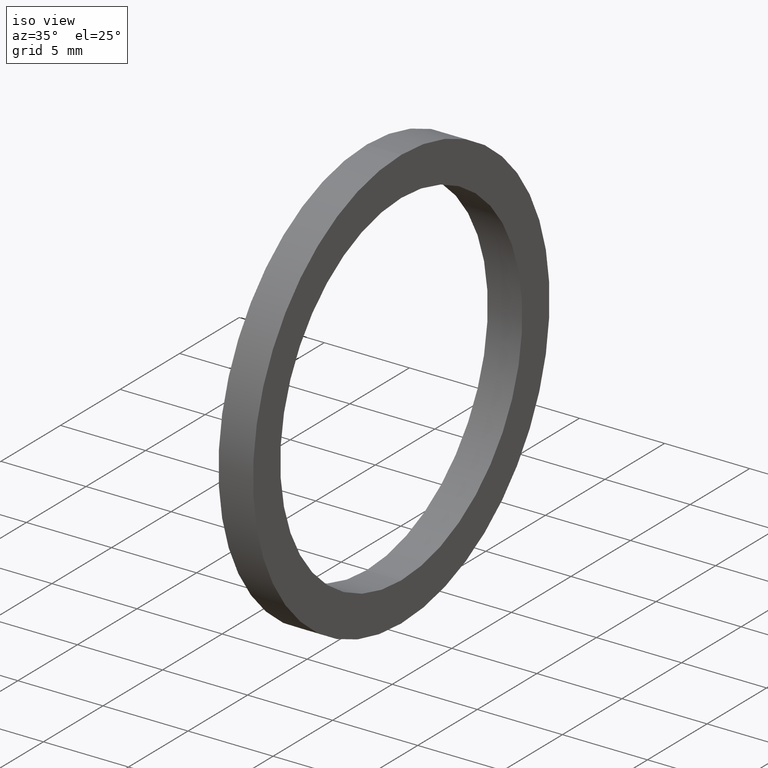
[diagram: clean part render]
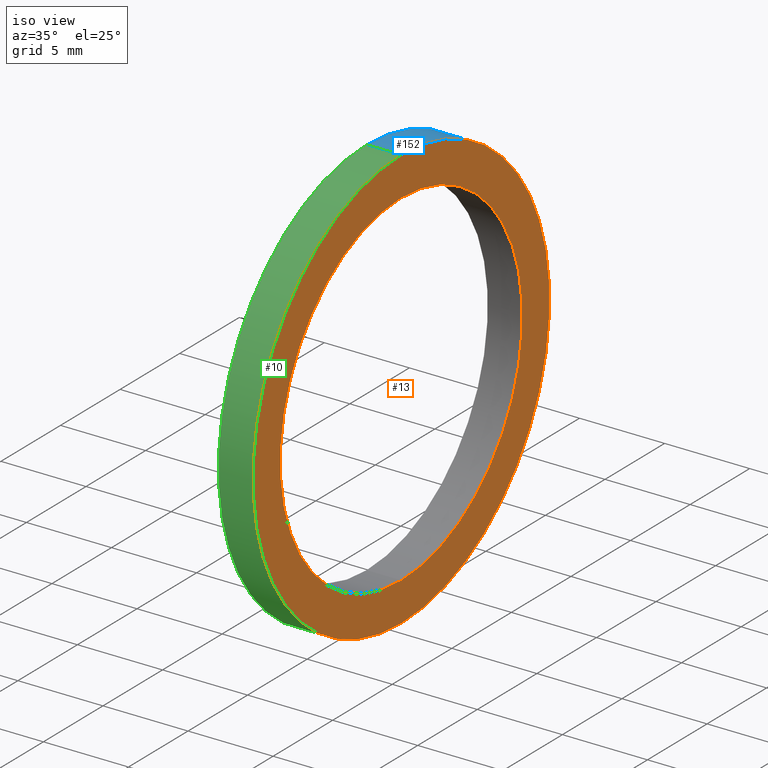
[diagram: same view with three faces highlighted in distinct colors, each labeled with its STEP entity id]
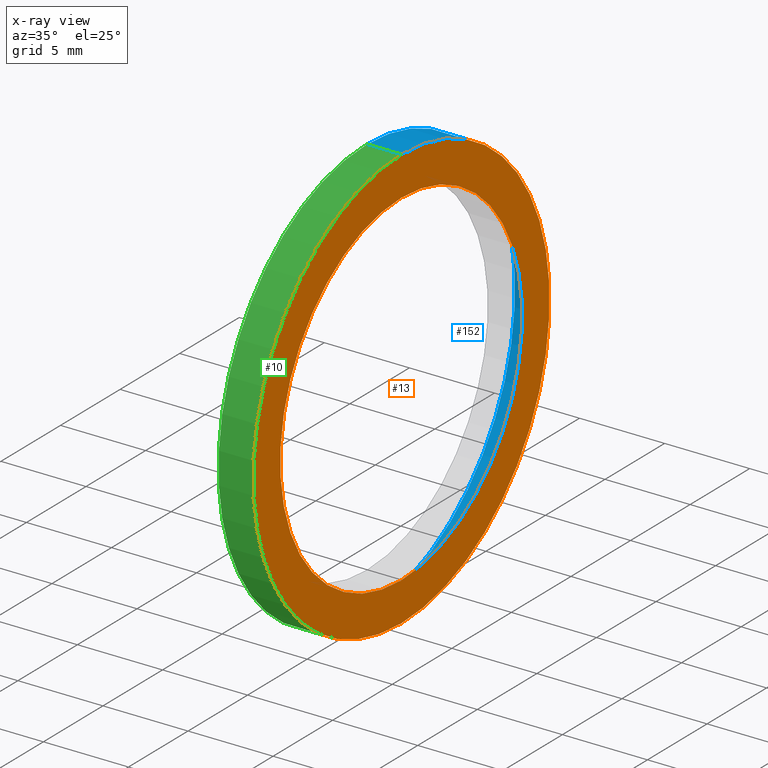
[diagram: x-ray of the same camera — body ghosted, the three highlighted faces saturated]
A machine part, iso view with three faces highlighted in distinct colors.
The next image is the same camera in x-ray (body ghosted, the three faces saturated) — at least one of them is partly hidden behind the body in this view.
Their STEP definitions:

[orange] entity #13 — the highlighted planar face has unit normal (1, 0, 0).
#8 = ORIENTED_EDGE ( 'NONE', *, *, #12, .F. ) ;
#12 = EDGE_CURVE ( 'NONE', #32, #22, #130, .T. ) ;
#13 = ADVANCED_FACE ( 'NONE', ( #131, #126 ), #125, .T. ) ;
#14 = EDGE_LOOP ( 'NONE', ( #30, #45 ) ) ;
#21 = EDGE_CURVE ( 'NONE', #22, #32, #150, .T. ) ;
#22 = VERTEX_POINT ( 'NONE', #146 ) ;
#30 = ORIENTED_EDGE ( 'NONE', *, *, #31, .T. ) ;
#31 = EDGE_CURVE ( 'NONE', #110, #111, #141, .T. ) ;
#32 = VERTEX_POINT ( 'NONE', #95 ) ;
#40 = ORIENTED_EDGE ( 'NONE', *, *, #21, .F. ) ;
#45 = ORIENTED_EDGE ( 'NONE', *, *, #109, .T. ) ;
#46 = EDGE_LOOP ( 'NONE', ( #40, #8 ) ) ;
#76 = CARTESIAN_POINT ( 'NONE',  ( 0.07999999999999996000, 4.898587196589413100E-017, -0.4000000000000000200 ) ) ;
#77 = CARTESIAN_POINT ( 'NONE',  ( 0.07999999999999996000, 0.0000000000000000000, 0.4000000000000000200 ) ) ;
#78 = DIRECTION ( 'NONE',  ( 0.0000000000000000000, 0.0000000000000000000, 1.000000000000000000 ) ) ;
#79 = DIRECTION ( 'NONE',  ( -1.000000000000000000, 0.0000000000000000000, 0.0000000000000000000 ) ) ;
#80 = CARTESIAN_POINT ( 'NONE',  ( 0.07999999999999996000, 0.0000000000000000000, 0.0000000000000000000 ) ) ;
#81 = AXIS2_PLACEMENT_3D ( 'NONE', #80, #79, #78 ) ;
#82 = CIRCLE ( 'NONE', #81, 0.4000000000000000200 ) ;
#95 = CARTESIAN_POINT ( 'NONE',  ( 0.07999999999999996000, 6.000769315822029800E-017, -0.4899999999999999900 ) ) ;
#96 = DIRECTION ( 'NONE',  ( 0.0000000000000000000, 0.0000000000000000000, 1.000000000000000000 ) ) ;
#97 = DIRECTION ( 'NONE',  ( -1.000000000000000000, 0.0000000000000000000, 0.0000000000000000000 ) ) ;
#98 = CARTESIAN_POINT ( 'NONE',  ( 0.07999999999999996000, 0.0000000000000000000, 0.0000000000000000000 ) ) ;
#99 = CARTESIAN_POINT ( 'NONE',  ( 0.07999999999999996000, 0.0000000000000000000, 0.0000000000000000000 ) ) ;
#109 = EDGE_CURVE ( 'NONE', #111, #110, #82, .T. ) ;
#110 = VERTEX_POINT ( 'NONE', #77 ) ;
#111 = VERTEX_POINT ( 'NONE', #76 ) ;
#116 = CARTESIAN_POINT ( 'NONE',  ( 0.07999999999999996000, 0.0000000000000000000, 0.0000000000000000000 ) ) ;
#120 = DIRECTION ( 'NONE',  ( 0.0000000000000000000, 0.0000000000000000000, -1.000000000000000000 ) ) ;
#121 = DIRECTION ( 'NONE',  ( 1.000000000000000000, 0.0000000000000000000, 0.0000000000000000000 ) ) ;
#122 = CARTESIAN_POINT ( 'NONE',  ( 0.08000000000000000200, -0.4000000000000000200, 0.0000000000000000000 ) ) ;
#123 = AXIS2_PLACEMENT_3D ( 'NONE', #122, #121, #120 ) ;
#125 = PLANE ( 'NONE',  #123 ) ;
#126 = FACE_OUTER_BOUND ( 'NONE', #46, .T. ) ;
#127 = DIRECTION ( 'NONE',  ( 0.0000000000000000000, 0.0000000000000000000, 1.000000000000000000 ) ) ;
#128 = DIRECTION ( 'NONE',  ( -1.000000000000000000, 0.0000000000000000000, 0.0000000000000000000 ) ) ;
#129 = AXIS2_PLACEMENT_3D ( 'NONE', #99, #128, #127 ) ;
#130 = CIRCLE ( 'NONE', #129, 0.4899999999999999900 ) ;
#131 = FACE_BOUND ( 'NONE', #14, .T. ) ;
#140 = AXIS2_PLACEMENT_3D ( 'NONE', #98, #97, #96 ) ;
#141 = CIRCLE ( 'NONE', #140, 0.4000000000000000200 ) ;
#146 = CARTESIAN_POINT ( 'NONE',  ( 0.07999999999999996000, 0.0000000000000000000, 0.4899999999999999900 ) ) ;
#147 = DIRECTION ( 'NONE',  ( 0.0000000000000000000, 0.0000000000000000000, 1.000000000000000000 ) ) ;
#148 = DIRECTION ( 'NONE',  ( -1.000000000000000000, 0.0000000000000000000, 0.0000000000000000000 ) ) ;
#149 = AXIS2_PLACEMENT_3D ( 'NONE', #116, #148, #147 ) ;
#150 = CIRCLE ( 'NONE', #149, 0.4899999999999999900 ) ;

[blue] entity #152 — the highlighted cylindrical surface (partial cylindrical patch) has radius 12.446 mm, axis along (-1, 0, 0).
#17 = EDGE_CURVE ( 'NONE', #22, #153, #124, .T. ) ;
#18 = ORIENTED_EDGE ( 'NONE', *, *, #17, .F. ) ;
#19 = EDGE_CURVE ( 'NONE', #153, #34, #115, .T. ) ;
#20 = ORIENTED_EDGE ( 'NONE', *, *, #21, .T. ) ;
#21 = EDGE_CURVE ( 'NONE', #22, #32, #150, .T. ) ;
#22 = VERTEX_POINT ( 'NONE', #146 ) ;
#23 = ORIENTED_EDGE ( 'NONE', *, *, #24, .T. ) ;
#24 = EDGE_CURVE ( 'NONE', #32, #34, #145, .T. ) ;
#32 = VERTEX_POINT ( 'NONE', #95 ) ;
#33 = ORIENTED_EDGE ( 'NONE', *, *, #19, .F. ) ;
#34 = VERTEX_POINT ( 'NONE', #94 ) ;
#38 = EDGE_LOOP ( 'NONE', ( #20, #23, #33, #18 ) ) ;
#52 = CARTESIAN_POINT ( 'NONE',  ( 0.0000000000000000000, 0.0000000000000000000, 0.4899999999999999900 ) ) ;
#53 = DIRECTION ( 'NONE',  ( 0.0000000000000000000, 0.0000000000000000000, 1.000000000000000000 ) ) ;
#54 = DIRECTION ( 'NONE',  ( -1.000000000000000000, 0.0000000000000000000, 0.0000000000000000000 ) ) ;
#55 = CARTESIAN_POINT ( 'NONE',  ( -1.721125226614714300, 0.0000000000000000000, 0.0000000000000000000 ) ) ;
#56 = AXIS2_PLACEMENT_3D ( 'NONE', #55, #54, #53 ) ;
#57 = CYLINDRICAL_SURFACE ( 'NONE', #56, 0.4899999999999999900 ) ;
#58 = FACE_OUTER_BOUND ( 'NONE', #38, .T. ) ;
#94 = CARTESIAN_POINT ( 'NONE',  ( 0.0000000000000000000, 6.000769315822029800E-017, -0.4899999999999999900 ) ) ;
#95 = CARTESIAN_POINT ( 'NONE',  ( 0.07999999999999996000, 6.000769315822029800E-017, -0.4899999999999999900 ) ) ;
#112 = DIRECTION ( 'NONE',  ( -1.000000000000000000, 0.0000000000000000000, 0.0000000000000000000 ) ) ;
#113 = CARTESIAN_POINT ( 'NONE',  ( 0.0000000000000000000, 0.0000000000000000000, 0.0000000000000000000 ) ) ;
#114 = AXIS2_PLACEMENT_3D ( 'NONE', #113, #112, #151 ) ;
#115 = CIRCLE ( 'NONE', #114, 0.4899999999999999900 ) ;
#116 = CARTESIAN_POINT ( 'NONE',  ( 0.07999999999999996000, 0.0000000000000000000, 0.0000000000000000000 ) ) ;
#117 = DIRECTION ( 'NONE',  ( -1.000000000000000000, 0.0000000000000000000, 0.0000000000000000000 ) ) ;
#118 = VECTOR ( 'NONE', #117, 39.37007874015748100 ) ;
#119 = CARTESIAN_POINT ( 'NONE',  ( -1.721125226614714300, 0.0000000000000000000, 0.4899999999999999900 ) ) ;
#124 = LINE ( 'NONE', #119, #118 ) ;
#142 = DIRECTION ( 'NONE',  ( -1.000000000000000000, 0.0000000000000000000, 0.0000000000000000000 ) ) ;
#143 = VECTOR ( 'NONE', #142, 39.37007874015748100 ) ;
#144 = CARTESIAN_POINT ( 'NONE',  ( -1.721125226614714300, 6.000769315822029800E-017, -0.4899999999999999900 ) ) ;
#145 = LINE ( 'NONE', #144, #143 ) ;
#146 = CARTESIAN_POINT ( 'NONE',  ( 0.07999999999999996000, 0.0000000000000000000, 0.4899999999999999900 ) ) ;
#147 = DIRECTION ( 'NONE',  ( 0.0000000000000000000, 0.0000000000000000000, 1.000000000000000000 ) ) ;
#148 = DIRECTION ( 'NONE',  ( -1.000000000000000000, 0.0000000000000000000, 0.0000000000000000000 ) ) ;
#149 = AXIS2_PLACEMENT_3D ( 'NONE', #116, #148, #147 ) ;
#150 = CIRCLE ( 'NONE', #149, 0.4899999999999999900 ) ;
#151 = DIRECTION ( 'NONE',  ( 0.0000000000000000000, 0.0000000000000000000, 1.000000000000000000 ) ) ;
#152 = ADVANCED_FACE ( 'NONE', ( #58 ), #57, .T. ) ;
#153 = VERTEX_POINT ( 'NONE', #52 ) ;

[green] entity #10 — the highlighted cylindrical surface (partial cylindrical patch) has radius 12.446 mm, axis along (-1, 0, 0).
#10 = ADVANCED_FACE ( 'NONE', ( #26 ), #104, .T. ) ;
#12 = EDGE_CURVE ( 'NONE', #32, #22, #130, .T. ) ;
#15 = ORIENTED_EDGE ( 'NONE', *, *, #24, .F. ) ;
#17 = EDGE_CURVE ( 'NONE', #22, #153, #124, .T. ) ;
#22 = VERTEX_POINT ( 'NONE', #146 ) ;
#24 = EDGE_CURVE ( 'NONE', #32, #34, #145, .T. ) ;
#26 = FACE_OUTER_BOUND ( 'NONE', #42, .T. ) ;
#29 = ORIENTED_EDGE ( 'NONE', *, *, #12, .T. ) ;
#32 = VERTEX_POINT ( 'NONE', #95 ) ;
#34 = VERTEX_POINT ( 'NONE', #94 ) ;
#39 = ORIENTED_EDGE ( 'NONE', *, *, #17, .T. ) ;
#42 = EDGE_LOOP ( 'NONE', ( #15, #29, #39, #44 ) ) ;
#44 = ORIENTED_EDGE ( 'NONE', *, *, #134, .F. ) ;
#52 = CARTESIAN_POINT ( 'NONE',  ( 0.0000000000000000000, 0.0000000000000000000, 0.4899999999999999900 ) ) ;
#71 = DIRECTION ( 'NONE',  ( 0.0000000000000000000, 0.0000000000000000000, 1.000000000000000000 ) ) ;
#72 = DIRECTION ( 'NONE',  ( -1.000000000000000000, 0.0000000000000000000, 0.0000000000000000000 ) ) ;
#73 = CARTESIAN_POINT ( 'NONE',  ( 0.0000000000000000000, 0.0000000000000000000, 0.0000000000000000000 ) ) ;
#74 = AXIS2_PLACEMENT_3D ( 'NONE', #73, #72, #71 ) ;
#75 = CIRCLE ( 'NONE', #74, 0.4899999999999999900 ) ;
#94 = CARTESIAN_POINT ( 'NONE',  ( 0.0000000000000000000, 6.000769315822029800E-017, -0.4899999999999999900 ) ) ;
#95 = CARTESIAN_POINT ( 'NONE',  ( 0.07999999999999996000, 6.000769315822029800E-017, -0.4899999999999999900 ) ) ;
#99 = CARTESIAN_POINT ( 'NONE',  ( 0.07999999999999996000, 0.0000000000000000000, 0.0000000000000000000 ) ) ;
#100 = DIRECTION ( 'NONE',  ( 0.0000000000000000000, 0.0000000000000000000, 1.000000000000000000 ) ) ;
#101 = DIRECTION ( 'NONE',  ( -1.000000000000000000, 0.0000000000000000000, 0.0000000000000000000 ) ) ;
#102 = CARTESIAN_POINT ( 'NONE',  ( -1.721125226614714300, 0.0000000000000000000, 0.0000000000000000000 ) ) ;
#103 = AXIS2_PLACEMENT_3D ( 'NONE', #102, #101, #100 ) ;
#104 = CYLINDRICAL_SURFACE ( 'NONE', #103, 0.4899999999999999900 ) ;
#117 = DIRECTION ( 'NONE',  ( -1.000000000000000000, 0.0000000000000000000, 0.0000000000000000000 ) ) ;
#118 = VECTOR ( 'NONE', #117, 39.37007874015748100 ) ;
#119 = CARTESIAN_POINT ( 'NONE',  ( -1.721125226614714300, 0.0000000000000000000, 0.4899999999999999900 ) ) ;
#124 = LINE ( 'NONE', #119, #118 ) ;
#127 = DIRECTION ( 'NONE',  ( 0.0000000000000000000, 0.0000000000000000000, 1.000000000000000000 ) ) ;
#128 = DIRECTION ( 'NONE',  ( -1.000000000000000000, 0.0000000000000000000, 0.0000000000000000000 ) ) ;
#129 = AXIS2_PLACEMENT_3D ( 'NONE', #99, #128, #127 ) ;
#130 = CIRCLE ( 'NONE', #129, 0.4899999999999999900 ) ;
#134 = EDGE_CURVE ( 'NONE', #34, #153, #75, .T. ) ;
#142 = DIRECTION ( 'NONE',  ( -1.000000000000000000, 0.0000000000000000000, 0.0000000000000000000 ) ) ;
#143 = VECTOR ( 'NONE', #142, 39.37007874015748100 ) ;
#144 = CARTESIAN_POINT ( 'NONE',  ( -1.721125226614714300, 6.000769315822029800E-017, -0.4899999999999999900 ) ) ;
#145 = LINE ( 'NONE', #144, #143 ) ;
#146 = CARTESIAN_POINT ( 'NONE',  ( 0.07999999999999996000, 0.0000000000000000000, 0.4899999999999999900 ) ) ;
#153 = VERTEX_POINT ( 'NONE', #52 ) ;